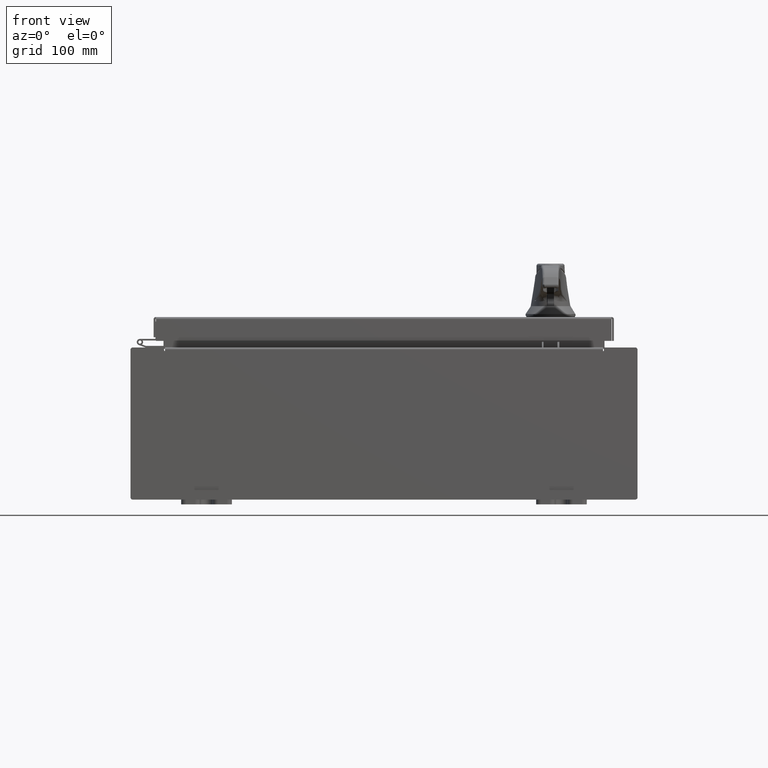
[diagram: clean part render]
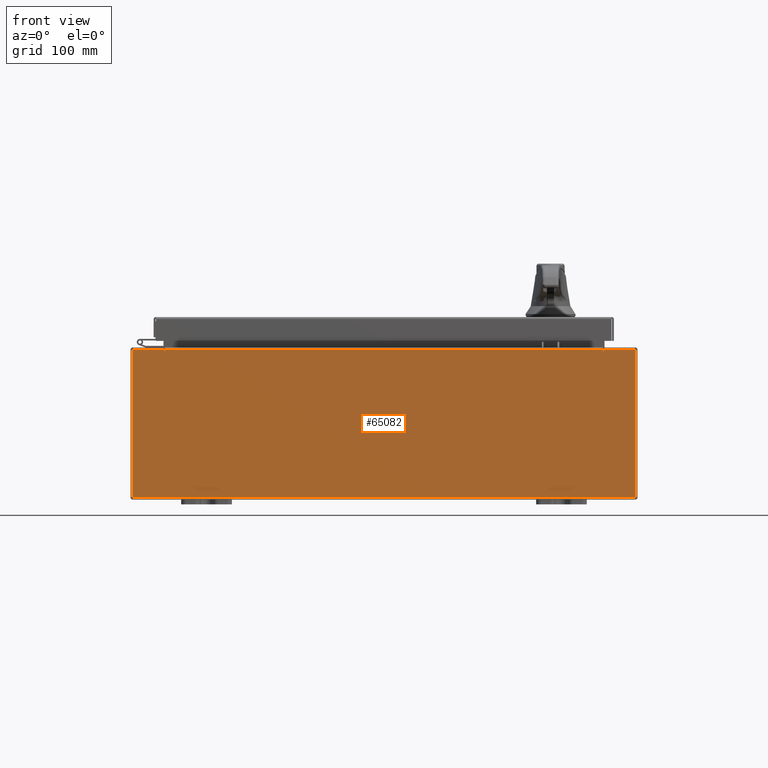
[diagram: same view with one face highlighted and labeled with its STEP entity id]
A machine part, front view. The second image highlights one B-rep face of the part: STEP entity #65082.
In plain terms, the highlighted planar face has unit normal (-0, 1, -0).
Its self-contained STEP definition (entity closure, byte-faithful):
#266 = LINE ( 'NONE', #56925, #41721 ) ;
#893 = LINE ( 'NONE', #8717, #86385 ) ;
#1611 = ORIENTED_EDGE ( 'NONE', *, *, #23682, .T. ) ;
#3291 = EDGE_CURVE ( 'NONE', #83600, #14430, #38332, .T. ) ;
#4480 = DIRECTION ( 'NONE',  ( -1.000000000000000000, -0.0000000000000000000, -0.0000000000000000000 ) ) ;
#4672 = DIRECTION ( 'NONE',  ( -0.0000000000000000000, 1.000000000000000000, -0.0000000000000000000 ) ) ;
#5578 = VECTOR ( 'NONE', #31921, 39.37007874015748100 ) ;
#6886 = FACE_OUTER_BOUND ( 'NONE', #63759, .T. ) ;
#8132 = LINE ( 'NONE', #39538, #5578 ) ;
#8511 = DIRECTION ( 'NONE',  ( 0.0000000000000000000, 0.0000000000000000000, -1.000000000000000000 ) ) ;
#8717 = CARTESIAN_POINT ( 'NONE',  ( 9.925300000000000000, 0.0000000000000000000, 2.925300000000000500 ) ) ;
#8742 = EDGE_CURVE ( 'NONE', #74178, #103313, #11870, .T. ) ;
#8756 = CARTESIAN_POINT ( 'NONE',  ( -9.925300000000000000, 0.0000000000000000000, 2.925300000000000500 ) ) ;
#10245 = ORIENTED_EDGE ( 'NONE', *, *, #33237, .F. ) ;
#11072 = VERTEX_POINT ( 'NONE', #68572 ) ;
#11382 = DIRECTION ( 'NONE',  ( -0.0000000000000000000, 1.000000000000000000, -0.0000000000000000000 ) ) ;
#11870 = LINE ( 'NONE', #11990, #31301 ) ;
#11990 = CARTESIAN_POINT ( 'NONE',  ( -8.674549999999996400, -0.0000000000000000000, 0.0000000000000000000 ) ) ;
#12353 = CARTESIAN_POINT ( 'NONE',  ( 0.0000000000000000000, 0.0000000000000000000, 0.0000000000000000000 ) ) ;
#13897 = DIRECTION ( 'NONE',  ( 1.000000000000000000, 0.0000000000000000000, 0.0000000000000000000 ) ) ;
#14430 = VERTEX_POINT ( 'NONE', #85402 ) ;
#17070 = DIRECTION ( 'NONE',  ( 1.000000000000000000, 0.0000000000000000000, 0.0000000000000000000 ) ) ;
#17824 = VERTEX_POINT ( 'NONE', #73413 ) ;
#21563 = VECTOR ( 'NONE', #56047, 39.37007874015748100 ) ;
#22224 = LINE ( 'NONE', #58065, #41591 ) ;
#23682 = EDGE_CURVE ( 'NONE', #104486, #103313, #60298, .T. ) ;
#24721 = CARTESIAN_POINT ( 'NONE',  ( 8.674550000000001800, 0.0000000000000000000, 2.925300000000000500 ) ) ;
#26103 = ORIENTED_EDGE ( 'NONE', *, *, #8742, .F. ) ;
#26135 = ORIENTED_EDGE ( 'NONE', *, *, #54942, .F. ) ;
#26535 = EDGE_CURVE ( 'NONE', #64416, #53812, #43231, .T. ) ;
#27812 = ORIENTED_EDGE ( 'NONE', *, *, #52885, .F. ) ;
#29375 = DIRECTION ( 'NONE',  ( 0.0000000000000000000, -0.0000000000000000000, -1.000000000000000000 ) ) ;
#30204 = CARTESIAN_POINT ( 'NONE',  ( -9.925300000000000000, 0.0000000000000000000, 2.925300000000000500 ) ) ;
#31301 = VECTOR ( 'NONE', #69905, 39.37007874015748100 ) ;
#31921 = DIRECTION ( 'NONE',  ( -6.510859170600007400E-014, 0.0000000000000000000, -1.000000000000000000 ) ) ;
#33237 = EDGE_CURVE ( 'NONE', #38679, #74178, #104765, .T. ) ;
#38332 = CIRCLE ( 'NONE', #46573, 0.01867500000000003900 ) ;
#38396 = ORIENTED_EDGE ( 'NONE', *, *, #83396, .T. ) ;
#38679 = VERTEX_POINT ( 'NONE', #88696 ) ;
#39538 = CARTESIAN_POINT ( 'NONE',  ( 8.674549999999813500, -0.0000000000000000000, -5.647877341832707700E-013 ) ) ;
#40769 = LINE ( 'NONE', #106777, #65333 ) ;
#40916 = EDGE_CURVE ( 'NONE', #53812, #11072, #893, .T. ) ;
#41092 = CARTESIAN_POINT ( 'NONE',  ( -8.674549999999996400, 0.0000000000000000000, 2.925300000000000500 ) ) ;
#41591 = VECTOR ( 'NONE', #8511, 39.37007874015748100 ) ;
#41721 = VECTOR ( 'NONE', #13897, 39.37007874015748100 ) ;
#43231 = LINE ( 'NONE', #46186, #106659 ) ;
#43502 = VECTOR ( 'NONE', #4480, 39.37007874015748100 ) ;
#43534 = LINE ( 'NONE', #88978, #21563 ) ;
#43535 = VECTOR ( 'NONE', #17070, 39.37007874015748100 ) ;
#45434 = CARTESIAN_POINT ( 'NONE',  ( 8.637200000000000000, 0.0000000000000000000, 2.912300000000000600 ) ) ;
#45987 = ORIENTED_EDGE ( 'NONE', *, *, #3291, .F. ) ;
#46186 = CARTESIAN_POINT ( 'NONE',  ( -9.925300000000000000, 0.0000000000000000000, 2.925300000000000500 ) ) ;
#46573 = AXIS2_PLACEMENT_3D ( 'NONE', #54267, #4672, #62516 ) ;
#46783 = ORIENTED_EDGE ( 'NONE', *, *, #74910, .F. ) ;
#49344 = EDGE_CURVE ( 'NONE', #59147, #104486, #43534, .T. ) ;
#50005 = DIRECTION ( 'NONE',  ( 0.0000000000000000000, 0.0000000000000000000, -1.000000000000000000 ) ) ;
#52885 = EDGE_CURVE ( 'NONE', #14430, #104325, #40769, .T. ) ;
#53666 = CARTESIAN_POINT ( 'NONE',  ( -8.674549999999996400, 0.0000000000000000000, 2.874950000000000600 ) ) ;
#53812 = VERTEX_POINT ( 'NONE', #89648 ) ;
#54267 = CARTESIAN_POINT ( 'NONE',  ( 8.655875000000000000, 0.0000000000000000000, 2.874950000000000600 ) ) ;
#54851 = AXIS2_PLACEMENT_3D ( 'NONE', #12353, #78961, #29375 ) ;
#54942 = EDGE_CURVE ( 'NONE', #64416, #83600, #8132, .T. ) ;
#55994 = CARTESIAN_POINT ( 'NONE',  ( -9.925300000000000000, 0.0000000000000000000, -2.925299999999999600 ) ) ;
#56047 = DIRECTION ( 'NONE',  ( -0.0000000000000000000, -0.0000000000000000000, 1.000000000000000000 ) ) ;
#56925 = CARTESIAN_POINT ( 'NONE',  ( -8.637200000000000000, 1.024442997624098700E-016, 2.912300000000000600 ) ) ;
#57158 = DIRECTION ( 'NONE',  ( 0.0000000000000000000, 0.0000000000000000000, 1.000000000000000000 ) ) ;
#58065 = CARTESIAN_POINT ( 'NONE',  ( -8.637199999999996400, -0.0000000000000000000, 0.0000000000000000000 ) ) ;
#59147 = VERTEX_POINT ( 'NONE', #55994 ) ;
#60298 = LINE ( 'NONE', #8756, #43535 ) ;
#60900 = CARTESIAN_POINT ( 'NONE',  ( -8.655874999999996400, 0.0000000000000000000, 2.874950000000000600 ) ) ;
#62332 = CARTESIAN_POINT ( 'NONE',  ( -9.925300000000000000, 0.0000000000000000000, -2.925299999999999600 ) ) ;
#62516 = DIRECTION ( 'NONE',  ( 0.0000000000000000000, 0.0000000000000000000, -1.000000000000000000 ) ) ;
#63759 = EDGE_LOOP ( 'NONE', ( #26103, #10245, #46783, #80605, #27812, #45987, #26135, #82587, #90389, #38396, #90196, #1611 ) ) ;
#64416 = VERTEX_POINT ( 'NONE', #24721 ) ;
#65082 = ADVANCED_FACE ( 'NONE', ( #6886 ), #70628, .F. ) ;
#65333 = VECTOR ( 'NONE', #57158, 39.37007874015748100 ) ;
#68572 = CARTESIAN_POINT ( 'NONE',  ( 9.925300000000000000, 0.0000000000000000000, -2.925299999999999600 ) ) ;
#69277 = DIRECTION ( 'NONE',  ( 0.0000000000000000000, 0.0000000000000000000, -1.000000000000000000 ) ) ;
#69905 = DIRECTION ( 'NONE',  ( 0.0000000000000000000, 0.0000000000000000000, 1.000000000000000000 ) ) ;
#70628 = PLANE ( 'NONE',  #54851 ) ;
#73413 = CARTESIAN_POINT ( 'NONE',  ( -8.637199999999996400, 1.024442997624098700E-016, 2.912300000000000600 ) ) ;
#74178 = VERTEX_POINT ( 'NONE', #53666 ) ;
#74910 = EDGE_CURVE ( 'NONE', #17824, #38679, #22224, .T. ) ;
#78961 = DIRECTION ( 'NONE',  ( 0.0000000000000000000, -1.000000000000000000, 0.0000000000000000000 ) ) ;
#80605 = ORIENTED_EDGE ( 'NONE', *, *, #87953, .T. ) ;
#82587 = ORIENTED_EDGE ( 'NONE', *, *, #26535, .T. ) ;
#83396 = EDGE_CURVE ( 'NONE', #11072, #59147, #90093, .T. ) ;
#83600 = VERTEX_POINT ( 'NONE', #92997 ) ;
#85402 = CARTESIAN_POINT ( 'NONE',  ( 8.637200000000000000, 0.0000000000000000000, 2.874950000000000600 ) ) ;
#86385 = VECTOR ( 'NONE', #50005, 39.37007874015748100 ) ;
#87953 = EDGE_CURVE ( 'NONE', #17824, #104325, #266, .T. ) ;
#88696 = CARTESIAN_POINT ( 'NONE',  ( -8.637199999999996400, -0.0000000000000000000, 2.874950000000000600 ) ) ;
#88978 = CARTESIAN_POINT ( 'NONE',  ( -9.925300000000000000, 0.0000000000000000000, 2.925300000000000500 ) ) ;
#89648 = CARTESIAN_POINT ( 'NONE',  ( 9.925300000000000000, 0.0000000000000000000, 2.925300000000000500 ) ) ;
#90093 = LINE ( 'NONE', #62332, #43502 ) ;
#90196 = ORIENTED_EDGE ( 'NONE', *, *, #49344, .T. ) ;
#90389 = ORIENTED_EDGE ( 'NONE', *, *, #40916, .T. ) ;
#92997 = CARTESIAN_POINT ( 'NONE',  ( 8.674550000000000000, 0.0000000000000000000, 2.874950000000000600 ) ) ;
#95735 = DIRECTION ( 'NONE',  ( 1.000000000000000000, 0.0000000000000000000, 0.0000000000000000000 ) ) ;
#102994 = AXIS2_PLACEMENT_3D ( 'NONE', #60900, #11382, #69277 ) ;
#103313 = VERTEX_POINT ( 'NONE', #41092 ) ;
#104325 = VERTEX_POINT ( 'NONE', #45434 ) ;
#104486 = VERTEX_POINT ( 'NONE', #30204 ) ;
#104765 = CIRCLE ( 'NONE', #102994, 0.01867500000000003900 ) ;
#106659 = VECTOR ( 'NONE', #95735, 39.37007874015748100 ) ;
#106777 = CARTESIAN_POINT ( 'NONE',  ( 8.637200000000000000, 0.0000000000000000000, 0.0000000000000000000 ) ) ;